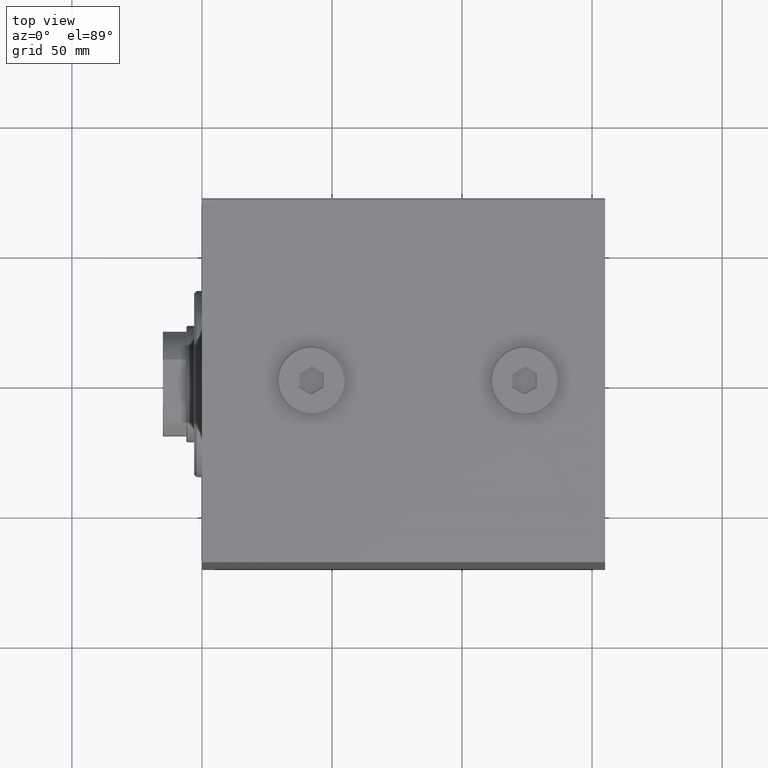
[diagram: clean part render]
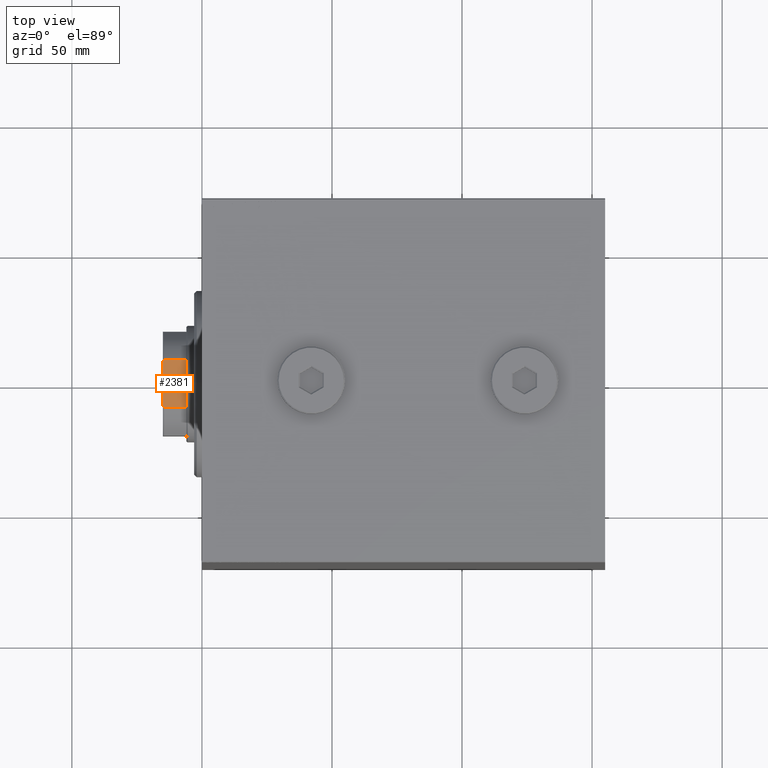
[diagram: same view with one face highlighted and labeled with its STEP entity id]
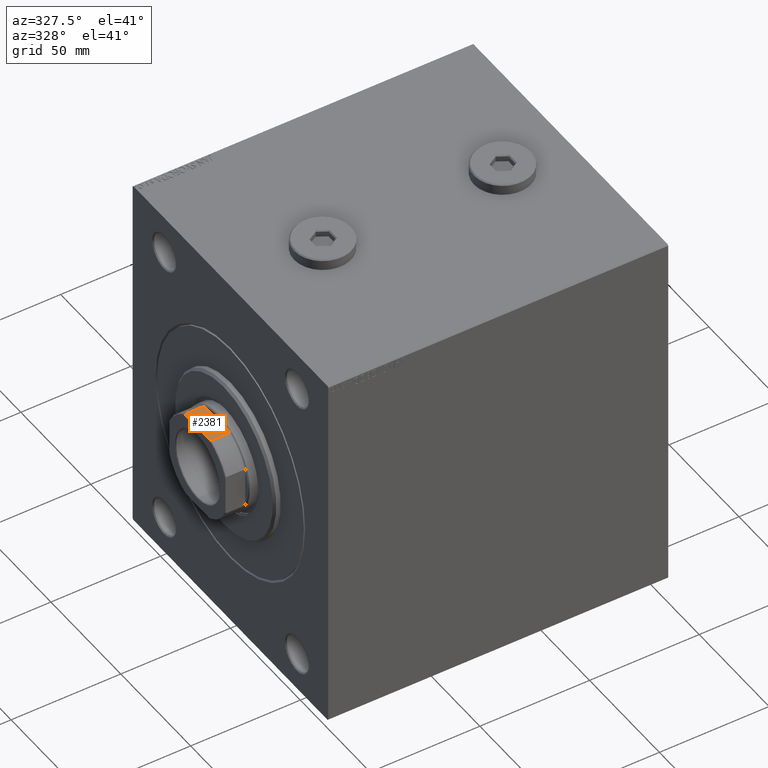
[diagram: same view with one face highlighted and labeled with its STEP entity id]
A machine part, top view. The second image highlights one B-rep face of the part: STEP entity #2381.
A second angle (auxiliary view) of the same face is appended — the face is thin or edge-on in the first view.
In plain terms, the highlighted planar face has unit normal (-0, -0, -1).
Its self-contained STEP definition (entity closure, byte-faithful):
#944 = VECTOR ( 'NONE', #23797, 1000.000000000000000 ) ;
#1631 = VECTOR ( 'NONE', #7324, 1000.000000000000000 ) ;
#1725 = CARTESIAN_POINT ( 'NONE',  ( 19.99999999999999289, -9.165151389911693869, 143.6999999999999318 ) ) ;
#2381 = ADVANCED_FACE ( 'NONE', ( #8921 ), #26727, .F. ) ;
#2933 = VERTEX_POINT ( 'NONE', #31613 ) ;
#3315 = VERTEX_POINT ( 'NONE', #1725 ) ;
#3565 = EDGE_CURVE ( 'NONE', #2933, #14427, #5130, .T. ) ;
#3578 = VERTEX_POINT ( 'NONE', #26158 ) ;
#3621 = EDGE_LOOP ( 'NONE', ( #16859, #10216, #4577, #9016, #25149, #45656 ) ) ;
#4233 = LINE ( 'NONE', #12024, #15741 ) ;
#4577 = ORIENTED_EDGE ( 'NONE', *, *, #44521, .F. ) ;
#4710 = VERTEX_POINT ( 'NONE', #23042 ) ;
#5091 = VECTOR ( 'NONE', #32864, 1000.000000000000000 ) ;
#5130 = LINE ( 'NONE', #37267, #5091 ) ;
#5477 = DIRECTION ( 'NONE',  ( 2.602085213965210149E-16, -1.000000000000000000, 0.000000000000000000 ) ) ;
#6722 = CARTESIAN_POINT ( 'NONE',  ( 19.99999999999999289, 8.917857062074533658, 143.8030222705678511 ) ) ;
#7102 = CARTESIAN_POINT ( 'NONE',  ( 19.99999999999999645, -8.669375665356129801, 143.9030945505373609 ) ) ;
#7324 = DIRECTION ( 'NONE',  ( -0.000000000000000000, -0.000000000000000000, 1.000000000000000000 ) ) ;
#8921 = FACE_OUTER_BOUND ( 'NONE', #3621, .T. ) ;
#9016 = ORIENTED_EDGE ( 'NONE', *, *, #15578, .T. ) ;
#9951 = CARTESIAN_POINT ( 'NONE',  ( 19.99999999999999289, 8.419619943916563543, 144.0000000000000284 ) ) ;
#10216 = ORIENTED_EDGE ( 'NONE', *, *, #32356, .T. ) ;
#10410 = CARTESIAN_POINT ( 'NONE',  ( 19.99999999999999645, 8.669375665356128025, 143.9030945505373609 ) ) ;
#11236 = CARTESIAN_POINT ( 'NONE',  ( 20.00000000000000000, -8.419619943916552884, 144.0000000000000284 ) ) ;
#11728 = B_SPLINE_CURVE_WITH_KNOTS ( 'NONE', 3,
 ( #11236, #7102, #21187, #25327 ),
 .UNSPECIFIED., .F., .F.,
 ( 4, 4 ),
 ( 0.000000000000000000, 0.0008036274864435962416 ),
 .UNSPECIFIED. ) ;
#12024 = CARTESIAN_POINT ( 'NONE',  ( 19.99999999999999289, -9.165151389911693869, -0.001000000000001000089 ) ) ;
#14427 = VERTEX_POINT ( 'NONE', #43771 ) ;
#14631 = DIRECTION ( 'NONE',  ( -0.000000000000000000, -0.000000000000000000, 1.000000000000000000 ) ) ;
#15578 = EDGE_CURVE ( 'NONE', #3578, #3315, #11728, .T. ) ;
#15741 = VECTOR ( 'NONE', #14631, 1000.000000000000000 ) ;
#16465 = EDGE_CURVE ( 'NONE', #14427, #4710, #28809, .T. ) ;
#16859 = ORIENTED_EDGE ( 'NONE', *, *, #16465, .T. ) ;
#19681 = EDGE_CURVE ( 'NONE', #2933, #3315, #4233, .T. ) ;
#20013 = DIRECTION ( 'NONE',  ( -1.000000000000000000, -2.602085213965210149E-16, 0.000000000000000000 ) ) ;
#20841 = CARTESIAN_POINT ( 'NONE',  ( 19.99999999999999289, 8.419619943916563543, 144.0000000000000284 ) ) ;
#21187 = CARTESIAN_POINT ( 'NONE',  ( 20.00000000000000000, -8.917857062074528329, 143.8030222705678511 ) ) ;
#22785 = CARTESIAN_POINT ( 'NONE',  ( 19.99999999999999289, 19.99999999999999289, 144.0000000000000284 ) ) ;
#23042 = CARTESIAN_POINT ( 'NONE',  ( 19.99999999999999289, 9.165151389911692092, 143.6999999999999318 ) ) ;
#23797 = DIRECTION ( 'NONE',  ( -2.602085213965210149E-16, 1.000000000000000000, -0.000000000000000000 ) ) ;
#25108 = CARTESIAN_POINT ( 'NONE',  ( 19.99999999999999289, 9.165151389911692092, -0.001000000000001000089 ) ) ;
#25149 = ORIENTED_EDGE ( 'NONE', *, *, #19681, .F. ) ;
#25327 = CARTESIAN_POINT ( 'NONE',  ( 19.99999999999999289, -9.165151389911693869, 143.6999999999999318 ) ) ;
#26158 = CARTESIAN_POINT ( 'NONE',  ( 20.00000000000000000, -8.419619943916552884, 144.0000000000000284 ) ) ;
#26727 = PLANE ( 'NONE',  #41982 ) ;
#26819 = CARTESIAN_POINT ( 'NONE',  ( 19.99999999999999289, 19.99999999999999289, 144.0000000000000284 ) ) ;
#27269 = LINE ( 'NONE', #26819, #944 ) ;
#28809 = LINE ( 'NONE', #25108, #1631 ) ;
#29155 = VERTEX_POINT ( 'NONE', #20841 ) ;
#31613 = CARTESIAN_POINT ( 'NONE',  ( 19.99999999999999289, -9.165151389911693869, 134.9999999999999716 ) ) ;
#32356 = EDGE_CURVE ( 'NONE', #4710, #29155, #39233, .T. ) ;
#32864 = DIRECTION ( 'NONE',  ( -2.602085213965210149E-16, 1.000000000000000000, -0.000000000000000000 ) ) ;
#37267 = CARTESIAN_POINT ( 'NONE',  ( 19.99999999999999289, 19.99999999999999289, 135.0000000000000000 ) ) ;
#39233 = B_SPLINE_CURVE_WITH_KNOTS ( 'NONE', 3,
 ( #41613, #6722, #10410, #9951 ),
 .UNSPECIFIED., .F., .F.,
 ( 4, 4 ),
 ( 0.000000000000000000, 0.0008036274864435864838 ),
 .UNSPECIFIED. ) ;
#41613 = CARTESIAN_POINT ( 'NONE',  ( 19.99999999999999289, 9.165151389911692092, 143.6999999999999318 ) ) ;
#41982 = AXIS2_PLACEMENT_3D ( 'NONE', #22785, #20013, #5477 ) ;
#43771 = CARTESIAN_POINT ( 'NONE',  ( 19.99999999999999289, 9.165151389911692092, 134.9999999999999716 ) ) ;
#44521 = EDGE_CURVE ( 'NONE', #3578, #29155, #27269, .T. ) ;
#45656 = ORIENTED_EDGE ( 'NONE', *, *, #3565, .T. ) ;